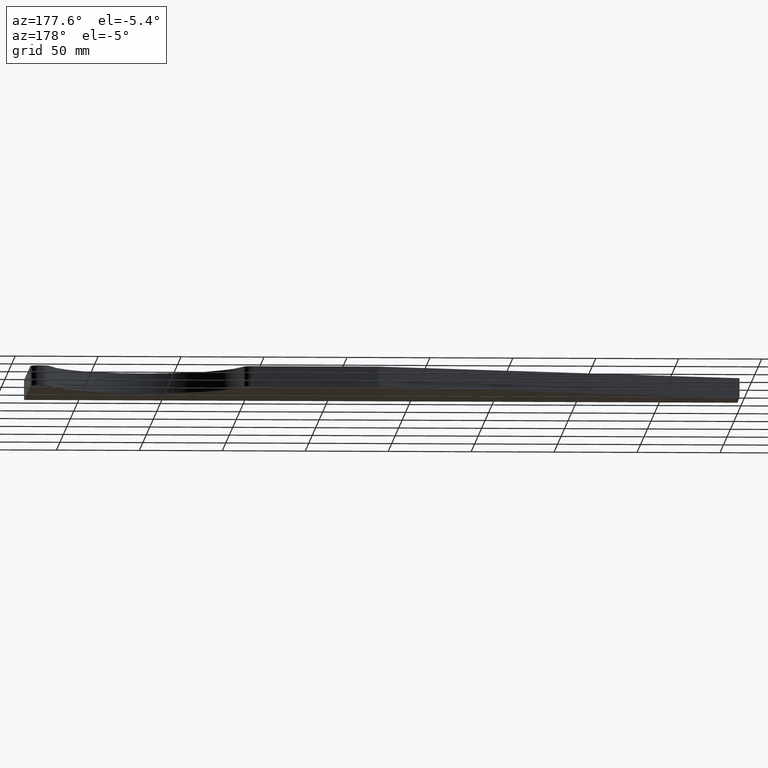
[diagram: clean part render]
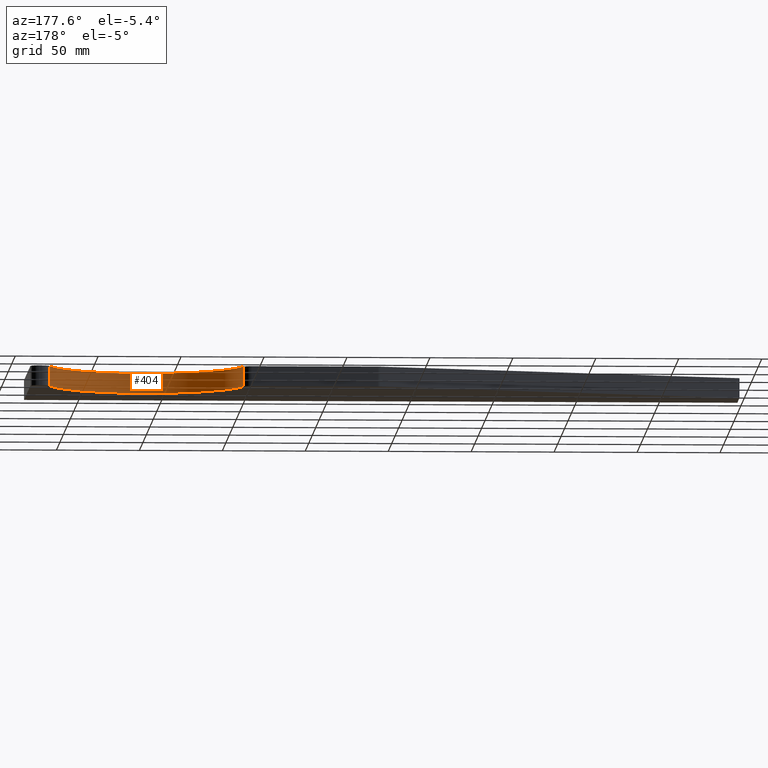
[diagram: same view with one face highlighted and labeled with its STEP entity id]
A machine part, auxiliary view. The second image highlights one B-rep face of the part: STEP entity #404.
In plain terms, the highlighted cylindrical surface (partial cylindrical patch) has radius 60 mm, axis along (-0, -0, -1).
Its self-contained STEP definition (entity closure, byte-faithful):
#7 = CARTESIAN_POINT ( 'NONE',  ( 418.3805106492623600, 91.15384615384617500, 6.000000000000000000 ) ) ;
#11 = AXIS2_PLACEMENT_3D ( 'NONE', #428, #423, #422 ) ;
#46 = CARTESIAN_POINT ( 'NONE',  ( 301.6194893507376400, 91.15384615384613200, 6.000000000000000000 ) ) ;
#66 = ORIENTED_EDGE ( 'NONE', *, *, #381, .T. ) ;
#120 = VERTEX_POINT ( 'NONE', #204 ) ;
#151 = EDGE_CURVE ( 'NONE', #290, #257, #252, .T. ) ;
#158 = CYLINDRICAL_SURFACE ( 'NONE', #380, 60.00000000000000000 ) ;
#164 = EDGE_CURVE ( 'NONE', #257, #284, #264, .T. ) ;
#165 = VECTOR ( 'NONE', #344, 1000.000000000000000 ) ;
#166 = FACE_OUTER_BOUND ( 'NONE', #365, .T. ) ;
#171 = LINE ( 'NONE', #7, #165 ) ;
#172 = EDGE_CURVE ( 'NONE', #120, #284, #250, .T. ) ;
#178 = AXIS2_PLACEMENT_3D ( 'NONE', #390, #389, #387 ) ;
#183 = ORIENTED_EDGE ( 'NONE', *, *, #151, .T. ) ;
#204 = CARTESIAN_POINT ( 'NONE',  ( 418.3805106492623600, 91.15384615384617500, 6.000000000000000000 ) ) ;
#247 = CARTESIAN_POINT ( 'NONE',  ( 418.3805106492623600, 91.15384615384617500, -6.000000000000000000 ) ) ;
#248 = VECTOR ( 'NONE', #439, 1000.000000000000000 ) ;
#250 = CIRCLE ( 'NONE', #178, 60.00000000000000000 ) ;
#252 = CIRCLE ( 'NONE', #11, 60.00000000000000000 ) ;
#257 = VERTEX_POINT ( 'NONE', #267 ) ;
#264 = LINE ( 'NONE', #46, #248 ) ;
#267 = CARTESIAN_POINT ( 'NONE',  ( 301.6194893507376400, 91.15384615384613200, -6.000000000000000000 ) ) ;
#270 = ORIENTED_EDGE ( 'NONE', *, *, #172, .F. ) ;
#272 = CARTESIAN_POINT ( 'NONE',  ( 301.6194893507376400, 91.15384615384613200, 6.000000000000000000 ) ) ;
#284 = VERTEX_POINT ( 'NONE', #272 ) ;
#290 = VERTEX_POINT ( 'NONE', #247 ) ;
#344 = DIRECTION ( 'NONE',  ( -0.0000000000000000000, -0.0000000000000000000, -1.000000000000000000 ) ) ;
#353 = DIRECTION ( 'NONE',  ( -1.000000000000000000, 0.0000000000000000000, 0.0000000000000000000 ) ) ;
#365 = EDGE_LOOP ( 'NONE', ( #183, #369, #270, #66 ) ) ;
#369 = ORIENTED_EDGE ( 'NONE', *, *, #164, .T. ) ;
#380 = AXIS2_PLACEMENT_3D ( 'NONE', #429, #433, #353 ) ;
#381 = EDGE_CURVE ( 'NONE', #120, #290, #171, .T. ) ;
#387 = DIRECTION ( 'NONE',  ( 1.000000000000000000, 0.0000000000000000000, 0.0000000000000000000 ) ) ;
#389 = DIRECTION ( 'NONE',  ( -0.0000000000000000000, -0.0000000000000000000, -1.000000000000000000 ) ) ;
#390 = CARTESIAN_POINT ( 'NONE',  ( 360.0000000000000000, 105.0000000000000000, 6.000000000000000000 ) ) ;
#404 = ADVANCED_FACE ( 'NONE', ( #166 ), #158, .F. ) ;
#422 = DIRECTION ( 'NONE',  ( 1.000000000000000000, 0.0000000000000000000, 0.0000000000000000000 ) ) ;
#423 = DIRECTION ( 'NONE',  ( -0.0000000000000000000, -0.0000000000000000000, -1.000000000000000000 ) ) ;
#428 = CARTESIAN_POINT ( 'NONE',  ( 360.0000000000000000, 105.0000000000000000, -6.000000000000000000 ) ) ;
#429 = CARTESIAN_POINT ( 'NONE',  ( 360.0000000000000000, 105.0000000000000000, 6.000000000000000000 ) ) ;
#433 = DIRECTION ( 'NONE',  ( -0.0000000000000000000, -0.0000000000000000000, -1.000000000000000000 ) ) ;
#439 = DIRECTION ( 'NONE',  ( 0.0000000000000000000, 0.0000000000000000000, 1.000000000000000000 ) ) ;